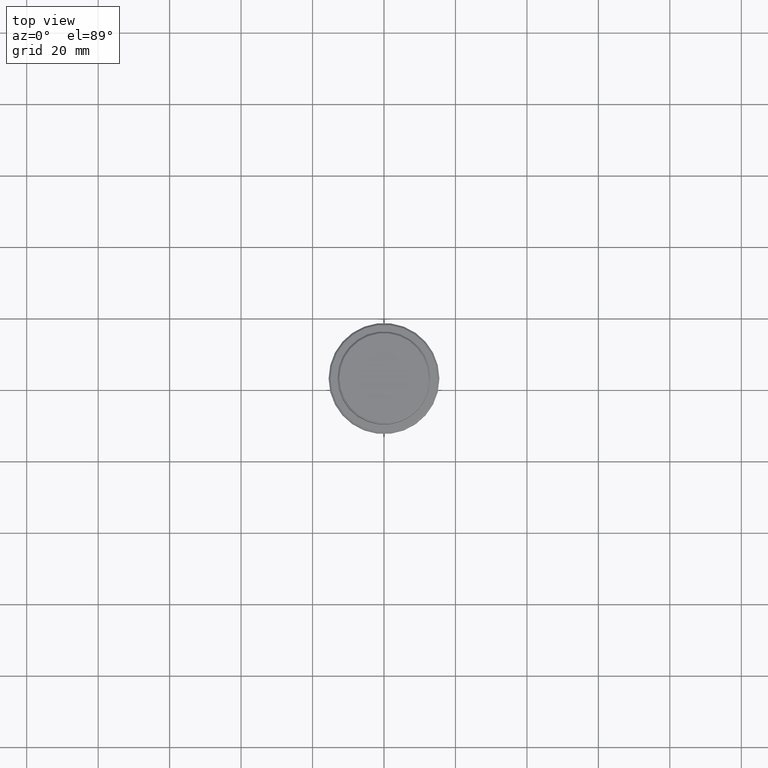
[diagram: clean part render]
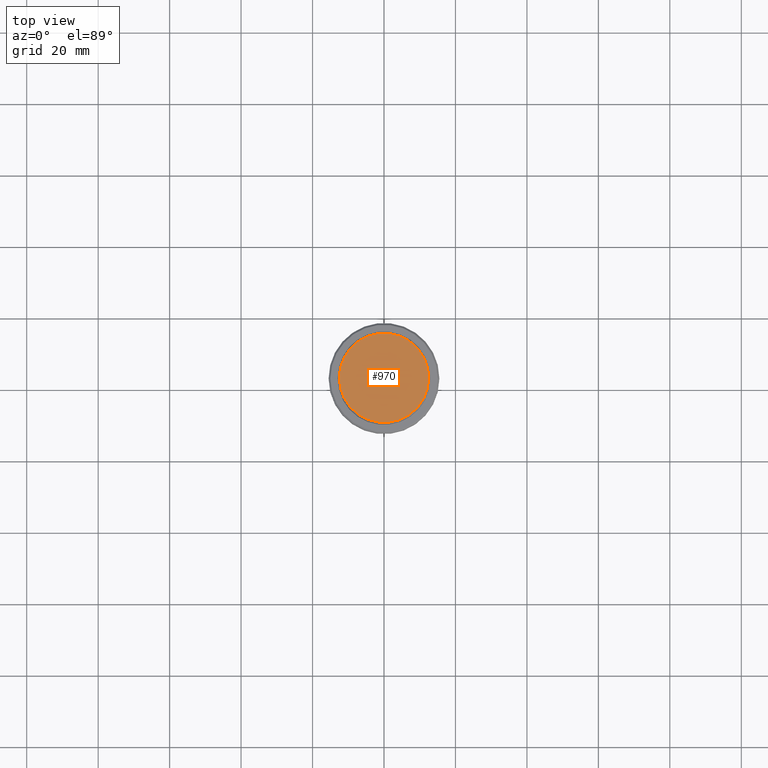
[diagram: same view with one face highlighted and labeled with its STEP entity id]
A machine part, top view. The second image highlights one B-rep face of the part: STEP entity #970.
In plain terms, the highlighted planar face has unit normal (0, -0, 1).
Its self-contained STEP definition (entity closure, byte-faithful):
#99 = ORIENTED_EDGE ( 'NONE', *, *, #202, .T. ) ;
#179 = DIRECTION ( 'NONE',  ( -0.000000000000000000, -0.000000000000000000, 1.000000000000000000 ) ) ;
#193 = VERTEX_POINT ( 'NONE', #727 ) ;
#202 = EDGE_CURVE ( 'NONE', #541, #193, #1249, .T. ) ;
#262 = CARTESIAN_POINT ( 'NONE',  ( 0.000000000000000000, 0.000000000000000000, 0.000000000000000000 ) ) ;
#281 = DIRECTION ( 'NONE',  ( 1.000000000000000000, 0.000000000000000000, 0.000000000000000000 ) ) ;
#489 = DIRECTION ( 'NONE',  ( -0.000000000000000000, -0.000000000000000000, 1.000000000000000000 ) ) ;
#496 = CARTESIAN_POINT ( 'NONE',  ( 12.49999999999998579, 1.561424668912874125E-15, 0.000000000000000000 ) ) ;
#506 = CIRCLE ( 'NONE', #836, 12.49999999999998579 ) ;
#541 = VERTEX_POINT ( 'NONE', #496 ) ;
#579 = AXIS2_PLACEMENT_3D ( 'NONE', #1279, #179, #1172 ) ;
#590 = PLANE ( 'NONE',  #1273 ) ;
#695 = DIRECTION ( 'NONE',  ( 1.000000000000000000, 0.000000000000000000, 0.000000000000000000 ) ) ;
#727 = CARTESIAN_POINT ( 'NONE',  ( -12.49999999999998579, 0.000000000000000000, 0.000000000000000000 ) ) ;
#802 = EDGE_LOOP ( 'NONE', ( #1078, #99 ) ) ;
#826 = CARTESIAN_POINT ( 'NONE',  ( 0.000000000000000000, 0.000000000000000000, 0.000000000000000000 ) ) ;
#836 = AXIS2_PLACEMENT_3D ( 'NONE', #262, #489, #695 ) ;
#941 = FACE_OUTER_BOUND ( 'NONE', #802, .T. ) ;
#970 = ADVANCED_FACE ( 'NONE', ( #941 ), #590, .T. ) ;
#1046 = EDGE_CURVE ( 'NONE', #193, #541, #506, .T. ) ;
#1078 = ORIENTED_EDGE ( 'NONE', *, *, #1046, .T. ) ;
#1172 = DIRECTION ( 'NONE',  ( 1.000000000000000000, 0.000000000000000000, 0.000000000000000000 ) ) ;
#1249 = CIRCLE ( 'NONE', #579, 12.49999999999998579 ) ;
#1266 = DIRECTION ( 'NONE',  ( 0.000000000000000000, -0.000000000000000000, 1.000000000000000000 ) ) ;
#1273 = AXIS2_PLACEMENT_3D ( 'NONE', #826, #1266, #281 ) ;
#1279 = CARTESIAN_POINT ( 'NONE',  ( 0.000000000000000000, 0.000000000000000000, 0.000000000000000000 ) ) ;